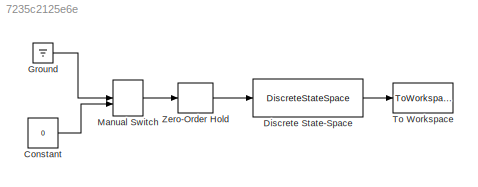
MODEL slx_7235c2125e6e
KIND model
CONFIG AbsTol = auto
CONFIG EnableMultiTasking = off
CONFIG FixedStep = step_size
CONFIG MaxStep = auto
CONFIG MinStep = auto
CONFIG RelTol = 1e-3
CONFIG SampleTimeConstraint = Unconstrained
CONFIG Solver = ode4
CONFIG SolverName = ode4
CONFIG StartTime = 0.0
CONFIG StopTime = 10.0
BLOCK [Constant] Constant
  SampleTime = h
  Value = 0
BLOCK [DiscreteStateSpace] Discrete State-Space
  A = A
  B = B
  C = C
  D = D
  InitialCondition = Start
  SampleTime = h
BLOCK [Ground] Ground
BLOCK [ManualSwitch] Manual Switch
  CurrentSetting = 0
BLOCK [ToWorkspace] To Workspace
  FixptAsFi = on
  MaxDataPoints = inf
  Ports = [1]
  SampleTime = step_size
  VariableName = x
BLOCK [ZeroOrderHold] Zero-Order Hold
  SampleTime = h
LINE Constant:1 -> Manual Switch:2
LINE Discrete State-Space:1 -> To Workspace:1
LINE Ground:1 -> Manual Switch:1
LINE Manual Switch:1 -> Zero-Order Hold:1
LINE Zero-Order Hold:1 -> Discrete State-Space:1
